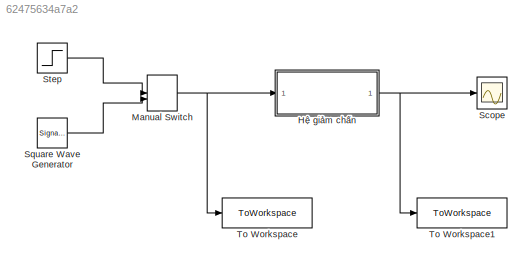
MODEL slx_62475634a7a2
KIND model
CONFIG AbsTol = auto
CONFIG EnableMultiTasking = off
CONFIG FixedStep = 0.1
CONFIG MaxStep = auto
CONFIG MinStep = auto
CONFIG RelTol = 1e-3
CONFIG SampleTimeConstraint = Unconstrained
CONFIG Solver = FixedStepAuto
CONFIG SolverName = FixedStepAuto
CONFIG StartTime = 0.0
CONFIG StopTime = 100.0
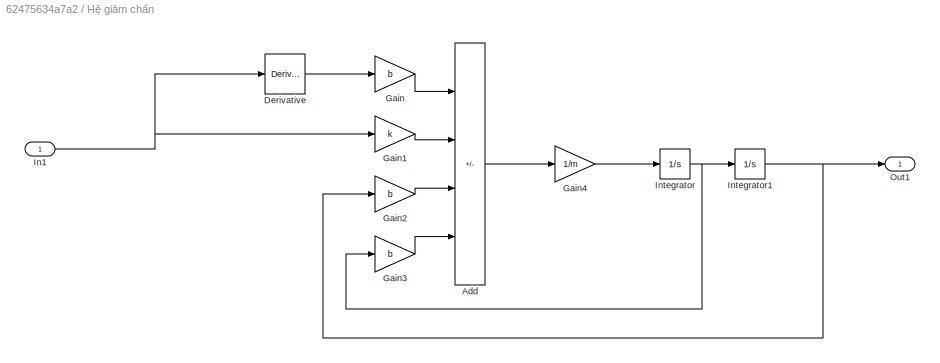
BLOCK [SubSystem] Hệ giảm chấn
  Ports = [1, 1]
  RequestExecContextInheritance = off
BLOCK [Sum] Hệ giảm chấn/Add
  IconShape = rectangular
  Inputs = ++--
  Ports = [4, 1]
BLOCK [Derivative] Hệ giảm chấn/Derivative
BLOCK [Gain] Hệ giảm chấn/Gain
  Gain = b
BLOCK [Gain] Hệ giảm chấn/Gain1
  Gain = k
BLOCK [Gain] Hệ giảm chấn/Gain2
  Gain = b
BLOCK [Gain] Hệ giảm chấn/Gain3
  Gain = b
BLOCK [Gain] Hệ giảm chấn/Gain4
  Gain = 1/m
BLOCK [Inport] Hệ giảm chấn/In1
BLOCK [Integrator] Hệ giảm chấn/Integrator
  Ports = [1, 1]
BLOCK [Integrator] Hệ giảm chấn/Integrator1
  Ports = [1, 1]
BLOCK [Outport] Hệ giảm chấn/Out1
BLOCK [ManualSwitch] Manual Switch
  CurrentSetting = 0
BLOCK [Scope] Scope
  Floating = off
  NumInputPorts = 1
  Ports = [1]
  ScopeSpecificationString = Simulink.scopes.TimeScopeBlockCfg('CurrentConfiguration', extmgr.ConfigurationSet(extmgr.Configuration('Core','General UI',true),extmgr.Configuration('Core','Source UI',true),extmgr.Configuration('Sources','WiredSimulink',true),extmgr.Configuration('Visuals','Time Domain',true,'SerializedDisplays',{struct('MinYLimReal','-4.70785','MaxYLimReal','2.73343','YLabelReal','','MinYLimMag','0.00000','MaxY...<+1332ch>
BLOCK [SignalGenerator] Square Wave Generator
  Amplitude = 20
  Frequency = 10
  Ports = [0, 1]
  Units = rad/sec
  WaveForm = random
BLOCK [Step] Step
  SampleTime = 0.1
BLOCK [ToWorkspace] To Workspace
  FixptAsFi = on
  MaxDataPoints = inf
  Ports = [1]
  SampleTime = 0.1
  SaveFormat = Timeseries
  VariableName = u1
BLOCK [ToWorkspace] To Workspace1
  FixptAsFi = on
  MaxDataPoints = inf
  Ports = [1]
  SampleTime = 0.1
  SaveFormat = Timeseries
  VariableName = y1
LINE Hệ giảm chấn/Add:1 -> Hệ giảm chấn/Gain4:1
LINE Hệ giảm chấn/Derivative:1 -> Hệ giảm chấn/Gain:1
LINE Hệ giảm chấn/Gain1:1 -> Hệ giảm chấn/Add:2
LINE Hệ giảm chấn/Gain2:1 -> Hệ giảm chấn/Add:3
LINE Hệ giảm chấn/Gain3:1 -> Hệ giảm chấn/Add:4
LINE Hệ giảm chấn/Gain4:1 -> Hệ giảm chấn/Integrator:1
LINE Hệ giảm chấn/Gain:1 -> Hệ giảm chấn/Add:1
NET Hệ giảm chấn/In1:1 -> Hệ giảm chấn/Derivative:1, Hệ giảm chấn/Gain1:1
NET Hệ giảm chấn/Integrator1:1 -> Hệ giảm chấn/Gain2:1, Hệ giảm chấn/Out1:1
NET Hệ giảm chấn/Integrator:1 -> Hệ giảm chấn/Gain3:1, Hệ giảm chấn/Integrator1:1
NET Hệ giảm chấn:1 -> Scope:1, To Workspace1:1
NET Manual Switch:1 -> Hệ giảm chấn:1, To Workspace:1
LINE Square Wave Generator:1 -> Manual Switch:2
LINE Step:1 -> Manual Switch:1
note: NET lines group one-source signal fan-out (src -> all destinations, sorted); 1:1 wires keep LINE
